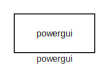
[diagram: root canvas - part 1/4, top center region]
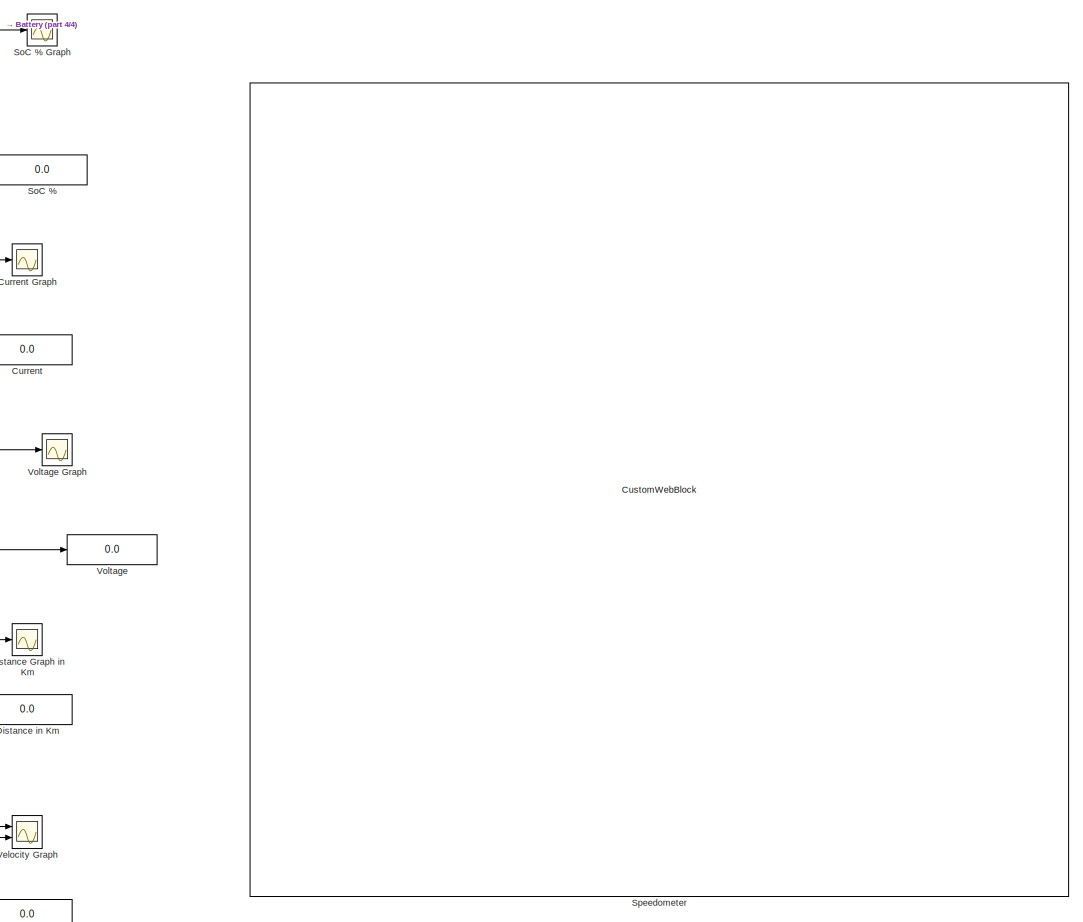
[diagram: root canvas - part 2/4, middle right region]
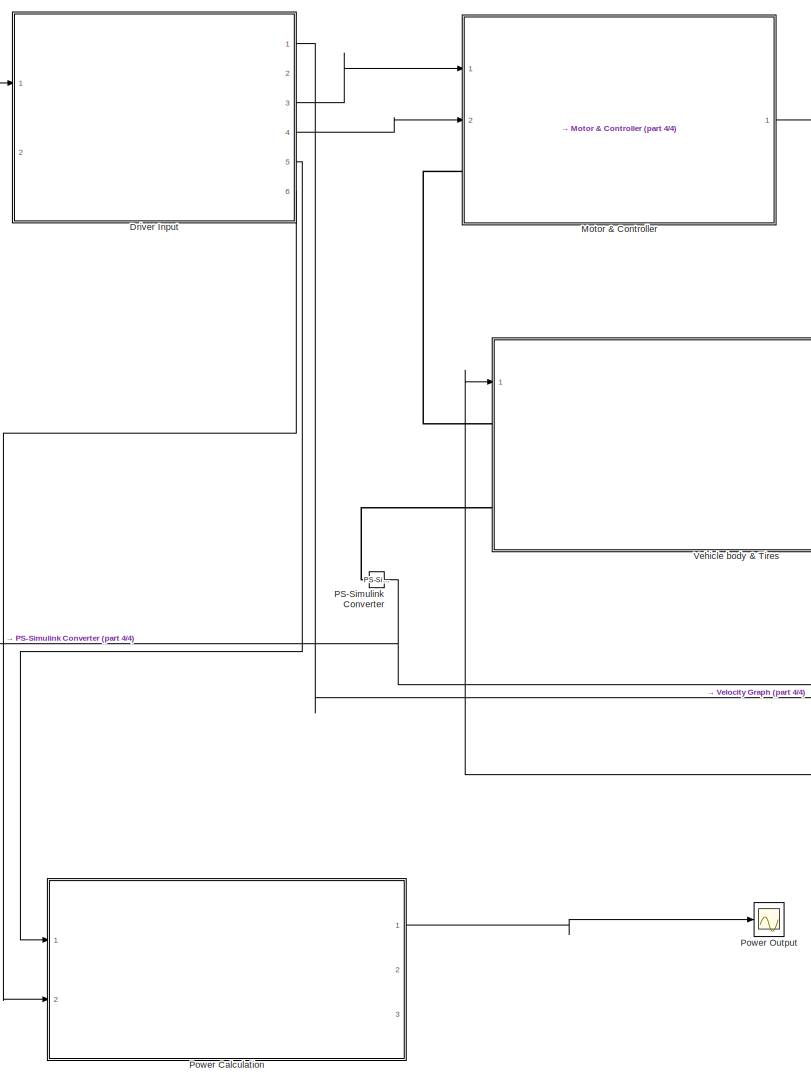
[diagram: root canvas - part 3/4, bottom left region]
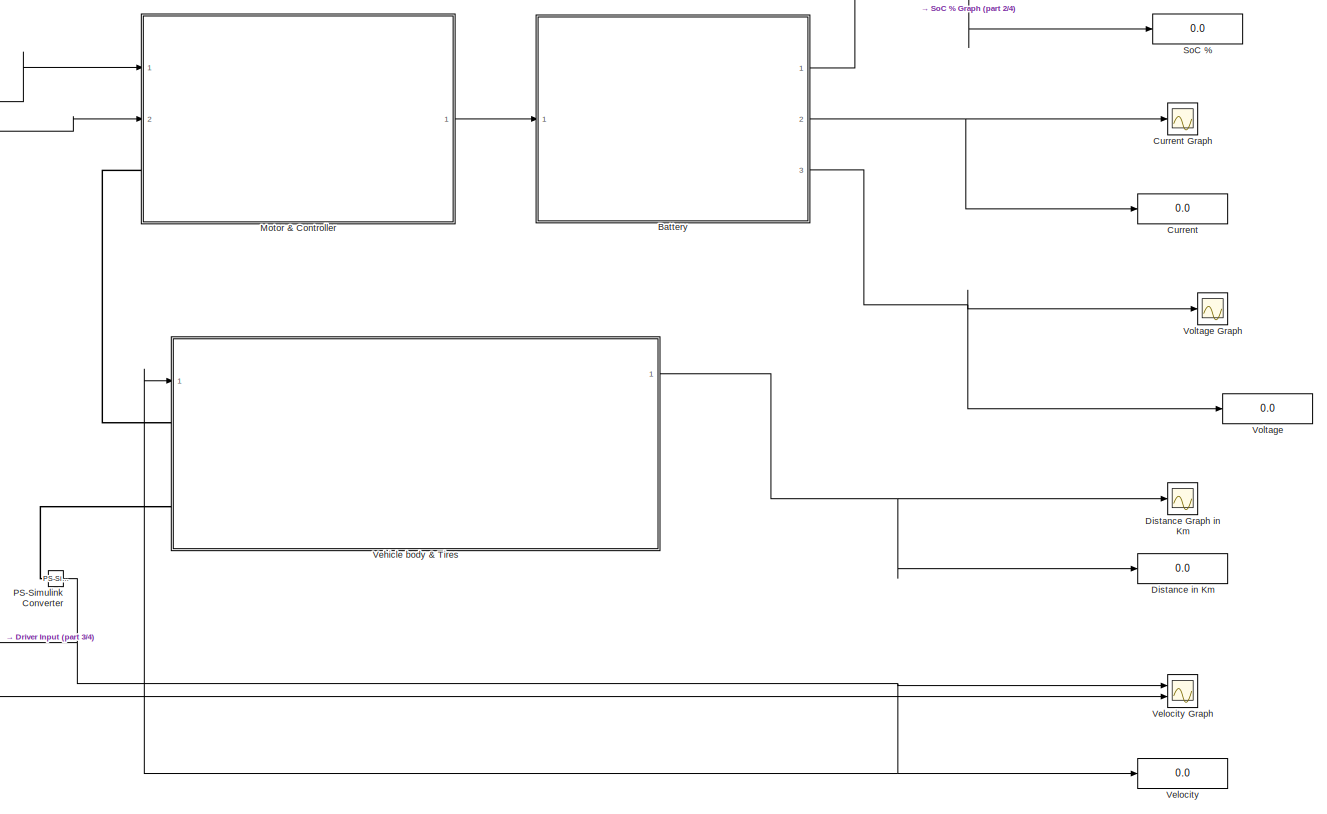
[diagram: root canvas - part 4/4, central region]
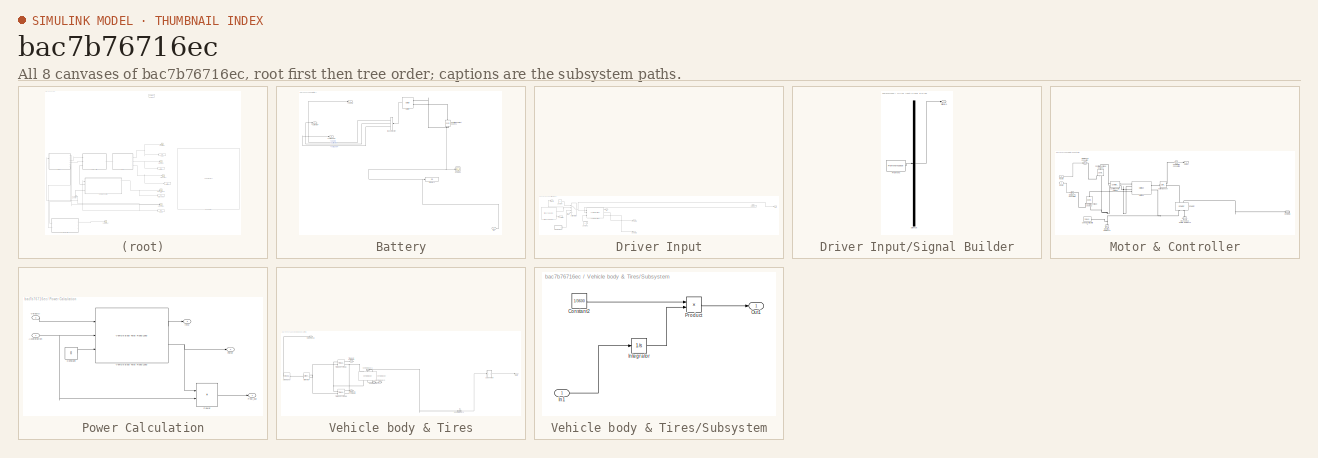
[diagram: thumbnail index - all 8 canvases of the model, root first then tree order]
MODEL slx_bac7b76716ec
KIND model
CONFIG AbsTol = auto
CONFIG EnableMultiTasking = off
CONFIG FixedStep = auto
CONFIG MaxStep = auto
CONFIG MinStep = auto
CONFIG RelTol = 1e-3
CONFIG SampleTimeConstraint = Unconstrained
CONFIG SolverName = VariableStepAuto
CONFIG StartTime = 0.0
CONFIG StopTime = 1068
BLOCK [CustomWebBlock]  Speedometer
  Configuration = {"components":[{"name":"CircularScaleComponent","settings":{"bounds":{"max":150,"min":0,"tickInterval":"auto"},"direction":"cw","flipLimits":0,"innerRadius":0.4366038148247103,"internalTickHeightScaleFactor":1,"labelColor":[250,245,200],"labelFont":{"font":"Arial","fontSize":12},"labelRadius":0.36,"labelTransparency":1,"minorTickHeightScaleFactor":0.2,"needleImage":{"size":[200,50],"src":"data:ima...<+21500ch>
  ShowInitialText = on
BLOCK [SubSystem] Battery
  Ports = [1, 3]
  RequestExecContextInheritance = off
BLOCK [Outport] Battery/<Current (A)>
  Port = 2
BLOCK [Outport] Battery/<SOC (%)>
BLOCK [Outport] Battery/<Voltage (V)>
  Port = 3
BLOCK [Reference] Battery/Battery  REF=spsBatteryLib/Battery
  Ports = [0, 1, 0, 0, 0, 2]
  SourceBlock = spsBatteryLib/Battery
  SourceProductBaseCode = PS
  SourceType = Battery
BLOCK [BusSelector] Battery/Bus Selector
  OutputSignals = SOC (%),Current (A),Voltage (V)
  Ports = [1, 3]
BLOCK [Reference] Battery/Controlled Current Source1  REF=spsControlledCurrentSourceLib/Controlled Current Source
  NameLocation = right
  Ports = [1, 0, 0, 0, 0, 1, 1]
  SourceBlock = spsControlledCurrentSourceLib/Controlled Current Source
  SourceProductBaseCode = PS
  SourceType = Controlled Current Source
BLOCK [Display] Battery/Display1
  Decimation = 1
  Ports = [1]
BLOCK [Inport] Battery/In1
BLOCK [Scope] Battery/Scope1
  Floating = off
  NumInputPorts = 1
  Ports = [1]
  ScopeSpecificationString = Simulink.scopes.TimeScopeBlockCfg('CurrentConfiguration', extmgr.ConfigurationSet(extmgr.Configuration('Core','General UI',true),extmgr.Configuration('Core','Source UI',true),extmgr.Configuration('Sources','WiredSimulink',true,'DataLoggingVariableName','ScopeData1'),extmgr.Configuration('Visuals','Time Domain',true,'SerializedDisplays',{struct('MinYLimReal','-308.28323','MaxYLimReal','426.32347','...<+1395ch>
BLOCK [Display] Current
  Decimation = 1
  Ports = [1]
BLOCK [Scope] Current Graph
  Floating = off
  NumInputPorts = 1
  Ports = [1]
  ScopeSpecificationString = Simulink.scopes.TimeScopeBlockCfg('CurrentConfiguration', extmgr.ConfigurationSet(extmgr.Configuration('Core','General UI',true),extmgr.Configuration('Core','Source UI',true),extmgr.Configuration('Sources','WiredSimulink',true,'DataLoggingVariableName','ScopeData3'),extmgr.Configuration('Visuals','Time Domain',true,'SerializedDisplays',{struct('MinYLimReal','-308.28322','MaxYLimReal','426.32347','...<+1392ch>
BLOCK [Scope] Distance Graph in Km
  Floating = off
  NumInputPorts = 1
  Ports = [1]
  ScopeSpecificationString = Simulink.scopes.TimeScopeBlockCfg('CurrentConfiguration', extmgr.ConfigurationSet(extmgr.Configuration('Core','General UI',true),extmgr.Configuration('Core','Source UI',true),extmgr.Configuration('Sources','WiredSimulink',true,'DataLoggingVariableName','ScopeData5'),extmgr.Configuration('Visuals','Time Domain',true,'SerializedDisplays',{struct('MinYLimReal','-1.36106','MaxYLimReal','12.24953','YLa...<+1383ch>
BLOCK [Display] Distance in Km
  Decimation = 1
  Ports = [1]
BLOCK [SubSystem] Driver Input
  Ports = [2, 6]
  RequestExecContextInheritance = off
BLOCK [Outport] Driver Input/AccelCmd
  Port = 3
BLOCK [Outport] Driver Input/Accleration
  Port = 5
BLOCK [Constant] Driver Input/Constant
  SampleTime = -1
  VectorParams1D = off
BLOCK [Constant] Driver Input/Constant1
  SampleTime = -1
  Value = 0
  VectorParams1D = off
BLOCK [Outport] Driver Input/DecelCmd
  Port = 4
BLOCK [Reference] Driver Input/Drive Cycle Source  REF=autolibshared/Drive Cycle Source
  AttributesFormatString = %<cycleVar> (%<tfinal>)
  Ports = [0, 2]
  SourceBlock = autolibshared/Drive Cycle Source
  SourceProductBaseCode = PW,DR,MT,UV,VE
  SourceType = Drive Cycle Source
BLOCK [Inport] Driver Input/In2
  Port = 2
BLOCK [Outport] Driver Input/Info
  Port = 2
BLOCK [Reference] Driver Input/Longitudinal Driver  REF=autolibshared/Longitudinal Driver
  Ports = [3, 3]
  SourceBlock = autolibshared/Longitudinal Driver
  SourceProductBaseCode = PW,DR,MT,UV,VE
  SourceType = Longitudinal Driver
BLOCK [MultiPortSwitch] Driver Input/Multiport Switch
  InputSameDT = off
  Ports = [4, 1]
  SaturateOnIntegerOverflow = off
BLOCK [Outport] Driver Input/Out1
BLOCK [SubSystem] Driver Input/Signal Builder
  ClipboardFcn = sigbuilder_block('clipboard');
  CloseFcn = sigbuilder_block('close');
  ContinueFcn = sigbuilder_block('continue');
  CopyFcn = sigbuilder_block('copy');
  DeleteFcn = sigbuilder_block('delete');
  LoadFcn = sigbuilder_block('load');
  MaskHideContents = on
  ModelCloseFcn = sigbuilder_block('modelClose');
  NameChangeFcn = sigbuilder_block('namechange');
  OpenFcn = sigbuilder_block('open',[451.2 94.8 550.8 400.2 ]);
  PauseFcn = sigbuilder_block('pause');
  Ports = [0, 1]
  PreSaveFcn = sigbuilder_block('preSave');
  RequestExecContextInheritance = off
  StartFcn = sigbuilder_block('start');
  StopFcn = sigbuilder_block('stop');
  Tag = STV Subsys
BLOCK [Demux] Driver Input/Signal Builder/Demux
  DisplayOption = none
  Outputs = 1
  Ports = [1, 1]
  Tag = STV Demux
BLOCK [FromWorkspace] Driver Input/Signal Builder/FromWs
  Tag = STV FromWs
  VariableName = tuvar
BLOCK [Outport] Driver Input/Signal Builder/Signal 1
  Tag = STV Outport
BLOCK [Inport] Driver Input/VelFdbk
BLOCK [Outport] Driver Input/Velocity
  Port = 6
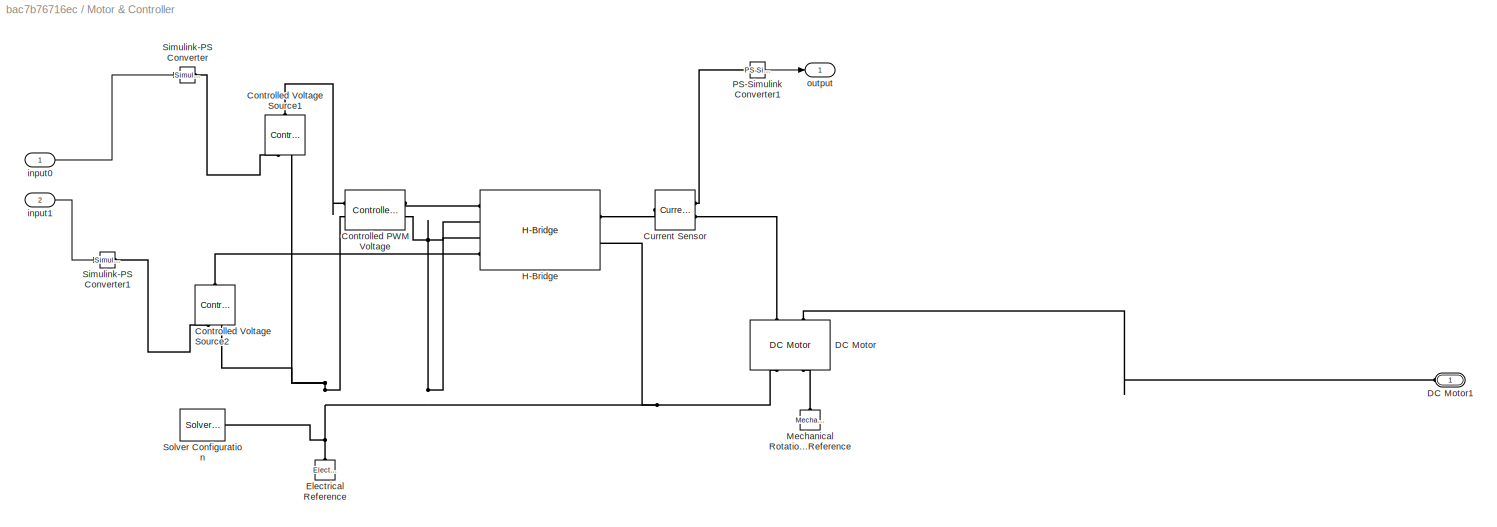
BLOCK [SubSystem] Motor & Controller
  Ports = [2, 1, 0, 0, 0, 1]
  RequestExecContextInheritance = off
BLOCK [Reference] Motor & Controller/Controlled PWM Voltage  REF=ee_lib/Integrated Circuits/Controlled PWM
Voltage
  Ports = [0, 0, 0, 0, 0, 2, 2]
  SourceBlock = ee_lib/Integrated Circuits/Controlled PWM\nVoltage
  SourceProductBaseCode = PS
  SourceType = Controlled PWM\nVoltage
BLOCK [Reference] Motor & Controller/Controlled Voltage Source1  REF=fl_lib/Electrical/Electrical Sources/Controlled Voltage
Source
  NameLocation = right
  Ports = [0, 0, 0, 0, 0, 1, 2]
  SourceBlock = fl_lib/Electrical/Electrical Sources/Controlled Voltage\nSource
  SourceProductBaseCode = SS
  SourceType = Controlled Voltage\nSource
BLOCK [Reference] Motor & Controller/Controlled Voltage Source2  REF=fl_lib/Electrical/Electrical Sources/Controlled Voltage
Source
  NameLocation = right
  Ports = [0, 0, 0, 0, 0, 1, 2]
  SourceBlock = fl_lib/Electrical/Electrical Sources/Controlled Voltage\nSource
  SourceProductBaseCode = SS
  SourceType = Controlled Voltage\nSource
BLOCK [Reference] Motor & Controller/Current Sensor  REF=fl_lib/Electrical/Electrical Sensors/Current Sensor
  Ports = [0, 0, 0, 0, 0, 1, 2]
  SourceBlock = fl_lib/Electrical/Electrical Sensors/Current Sensor
  SourceProductBaseCode = SS
  SourceType = Current Sensor
BLOCK [Reference] Motor & Controller/DC Motor  REF=ee_lib/Electromechanical/Brushed Motors/DC Motor
  NameLocation = right
  Ports = [0, 0, 0, 0, 0, 2, 2]
  SourceBlock = ee_lib/Electromechanical/Brushed Motors/DC Motor
  SourceProductBaseCode = PS
  SourceType = DC Motor
BLOCK [PMIOPort] Motor & Controller/DC Motor1
  Side = Left
BLOCK [Reference] Motor & Controller/Electrical Reference  REF=fl_lib/Electrical/Electrical Elements/Electrical Reference
  NameLocation = right
  Ports = [0, 0, 0, 0, 0, 1]
  SourceBlock = fl_lib/Electrical/Electrical Elements/Electrical Reference
  SourceProductBaseCode = SS
  SourceType = Electrical Reference
BLOCK [Reference] Motor & Controller/H-Bridge  REF=ee_lib/Semiconductors &
Converters/Converters/H-Bridge
  Ports = [0, 0, 0, 0, 0, 4, 2]
  SourceBlock = ee_lib/Semiconductors &\nConverters/Converters/H-Bridge
  SourceProductBaseCode = PS
  SourceType = H-Bridge
BLOCK [Reference] Motor & Controller/Mechanical Rotational Reference  REF=fl_lib/Mechanical/Rotational Elements/Mechanical
Rotational Reference
  NameLocation = right
  Ports = [0, 0, 0, 0, 0, 1]
  SourceBlock = fl_lib/Mechanical/Rotational Elements/Mechanical\nRotational Reference
  SourceProductBaseCode = SS
  SourceType = Mechanical\nRotational Reference
BLOCK [Reference] Motor & Controller/PS-Simulink Converter1  REF=nesl_utility/PS-Simulink
Converter
  Ports = [0, 1, 0, 0, 0, 1]
  SourceBlock = nesl_utility/PS-Simulink\nConverter
  SourceProductBaseCode = PW,SS
  SourceType = PS-Simulink\nConverter
BLOCK [Reference] Motor & Controller/Simulink-PS Converter  REF=nesl_utility/Simulink-PS
Converter
  Ports = [1, 0, 0, 0, 0, 0, 1]
  SourceBlock = nesl_utility/Simulink-PS\nConverter
  SourceProductBaseCode = PW,SS
  SourceType = Simulink-PS\nConverter
BLOCK [Reference] Motor & Controller/Simulink-PS Converter1  REF=nesl_utility/Simulink-PS
Converter
  Ports = [1, 0, 0, 0, 0, 0, 1]
  SourceBlock = nesl_utility/Simulink-PS\nConverter
  SourceProductBaseCode = PW,SS
  SourceType = Simulink-PS\nConverter
BLOCK [Reference] Motor & Controller/Solver Configuration  REF=nesl_utility/Solver
Configuration
  Ports = [0, 0, 0, 0, 0, 0, 1]
  SourceBlock = nesl_utility/Solver\nConfiguration
  SourceProductBaseCode = PW,SS
  SourceType = Solver\nConfiguration
BLOCK [Inport] Motor & Controller/input0
BLOCK [Inport] Motor & Controller/input1
  Port = 2
BLOCK [Outport] Motor & Controller/output
BLOCK [Reference] PS-Simulink Converter  REF=nesl_utility/PS-Simulink
Converter
  NameLocation = top
  Ports = [0, 1, 0, 0, 0, 1]
  SourceBlock = nesl_utility/PS-Simulink\nConverter
  SourceProductBaseCode = PW,SS
  SourceType = PS-Simulink\nConverter
BLOCK [SubSystem] Power Calculation
  Ports = [2, 3]
  RequestExecContextInheritance = off
BLOCK [Inport] Power Calculation/Acceleration
BLOCK [Constant] Power Calculation/Constant
  Value = 0
BLOCK [Outport] Power Calculation/Force
  Port = 2
BLOCK [Outport] Power Calculation/Pow_out
BLOCK [Product] Power Calculation/Power
  Ports = [2, 1]
BLOCK [Reference] Power Calculation/Vehicle Body Total Road Load  REF=autolibshared/Vehicle Body Total Road Load
  Ports = [3, 2]
  SourceBlock = autolibshared/Vehicle Body Total Road Load
  SourceProductBaseCode = PW,DR,MT,UV,VE
  SourceType = Vehicle Body Total Road Load
BLOCK [Inport] Power Calculation/Velocity
  Port = 2
BLOCK [Outport] Power Calculation/info
  Port = 3
BLOCK [Scope] Power Output
  Floating = off
  NumInputPorts = 1
  Ports = [1]
  ScopeSpecificationString = Simulink.scopes.TimeScopeBlockCfg('CurrentConfiguration', extmgr.ConfigurationSet(extmgr.Configuration('Core','General UI',true),extmgr.Configuration('Core','Source UI',true),extmgr.Configuration('Sources','WiredSimulink',true,'DataLoggingVariableName','ScopeData1'),extmgr.Configuration('Visuals','Time Domain',true,'SerializedDisplays',{struct('MinYLimReal','-18895.3286','MaxYLimReal','166466.9152...<+1463ch>
BLOCK [Display] SoC %
  Decimation = 1
  Ports = [1]
BLOCK [Scope] SoC % Graph
  Floating = off
  NumInputPorts = 1
  Ports = [1]
  ScopeSpecificationString = Simulink.scopes.TimeScopeBlockCfg('CurrentConfiguration', extmgr.ConfigurationSet(extmgr.Configuration('Core','General UI',true),extmgr.Configuration('Core','Source UI',true),extmgr.Configuration('Sources','WiredSimulink',true,'DataLoggingVariableName','ScopeData2'),extmgr.Configuration('Visuals','Time Domain',true,'SerializedDisplays',{struct('MinYLimReal','84.17971','MaxYLimReal','101.75781','YL...<+1416ch>
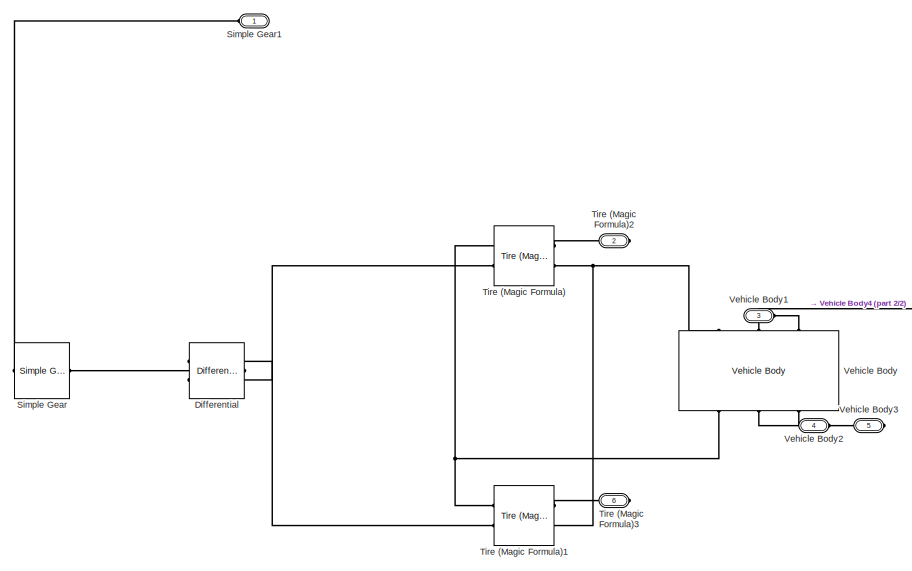
[diagram: Vehicle body & Tires - part 1/2, left side, full height]
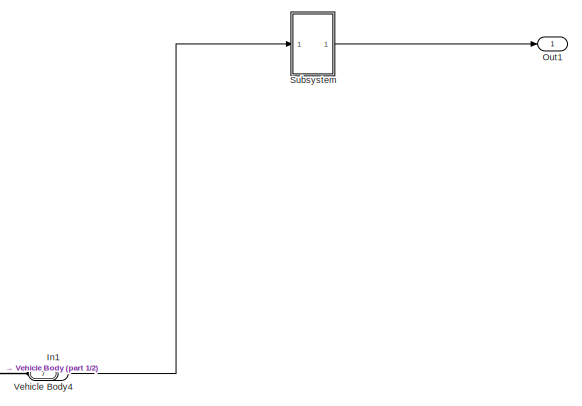
[diagram: Vehicle body & Tires - part 2/2, bottom right region]
BLOCK [SubSystem] Vehicle body & Tires
  Ports = [1, 1, 0, 0, 0, 3, 4]
  RequestExecContextInheritance = off
BLOCK [Reference] Vehicle body & Tires/Differential  REF=sdl_lib/Gears/Differential
  NameLocation = top
  Ports = [0, 0, 0, 0, 0, 1, 2]
  SourceBlock = sdl_lib/Gears/Differential
  SourceProductBaseCode = LD
  SourceType = Differential
BLOCK [Inport] Vehicle body & Tires/In1
BLOCK [Outport] Vehicle body & Tires/Out1
BLOCK [Reference] Vehicle body & Tires/Simple Gear  REF=sdl_lib/Gears/Simple Gear
  Ports = [0, 0, 0, 0, 0, 1, 1]
  SourceBlock = sdl_lib/Gears/Simple Gear
  SourceProductBaseCode = LD
  SourceType = Simple Gear
BLOCK [PMIOPort] Vehicle body & Tires/Simple Gear1
  Side = Left
BLOCK [SubSystem] Vehicle body & Tires/Subsystem
  Ports = [1, 1]
  RequestExecContextInheritance = off
BLOCK [Constant] Vehicle body & Tires/Subsystem/Constant2
  Value = 1/3600
BLOCK [Inport] Vehicle body & Tires/Subsystem/In1
BLOCK [Integrator] Vehicle body & Tires/Subsystem/Integrator
  Ports = [1, 1]
BLOCK [Outport] Vehicle body & Tires/Subsystem/Out1
BLOCK [Product] Vehicle body & Tires/Subsystem/Product
  Ports = [2, 1]
BLOCK [Reference] Vehicle body & Tires/Tire (Magic Formula)  REF=sdl_lib/Tires & Vehicles/Tire (Magic Formula)
  Ports = [0, 0, 0, 0, 0, 2, 2]
  SourceBlock = sdl_lib/Tires & Vehicles/Tire (Magic Formula)
  SourceProductBaseCode = LD
  SourceType = Tire (Magic Formula)
BLOCK [Reference] Vehicle body & Tires/Tire (Magic Formula)1  REF=sdl_lib/Tires & Vehicles/Tire (Magic Formula)
  Ports = [0, 0, 0, 0, 0, 2, 2]
  SourceBlock = sdl_lib/Tires & Vehicles/Tire (Magic Formula)
  SourceProductBaseCode = LD
  SourceType = Tire (Magic Formula)
BLOCK [PMIOPort] Vehicle body & Tires/Tire (Magic Formula)2
  Port = 2
  Side = Right
BLOCK [PMIOPort] Vehicle body & Tires/Tire (Magic Formula)3
  Port = 6
  Side = Right
BLOCK [Reference] Vehicle body & Tires/Vehicle Body  REF=sdl_lib/Tires & Vehicles/Vehicle Body
  NameLocation = right
  Ports = [0, 0, 0, 0, 0, 3, 3]
  SourceBlock = sdl_lib/Tires & Vehicles/Vehicle Body
  SourceProductBaseCode = LD
  SourceType = Vehicle Body
BLOCK [PMIOPort] Vehicle body & Tires/Vehicle Body1
  Port = 3
  Side = Left
BLOCK [PMIOPort] Vehicle body & Tires/Vehicle Body2
  Port = 4
  Side = Right
BLOCK [PMIOPort] Vehicle body & Tires/Vehicle Body3
  Port = 5
  Side = Right
BLOCK [PMIOPort] Vehicle body & Tires/Vehicle Body4
  Port = 7
  Side = Left
BLOCK [Display] Velocity
  Decimation = 1
  Ports = [1]
BLOCK [Scope] Velocity Graph
  Floating = off
  NumInputPorts = 2
  Ports = [2]
  ScopeSpecificationString = Simulink.scopes.TimeScopeBlockCfg('CurrentConfiguration', extmgr.ConfigurationSet(extmgr.Configuration('Core','General UI',true),extmgr.Configuration('Core','Source UI',true),extmgr.Configuration('Sources','WiredSimulink',true),extmgr.Configuration('Visuals','Time Domain',true,'SerializedDisplays',{struct('MinYLimReal','-16.475','MaxYLimReal','148.275','YLabelReal','','MinYLimMag','0.00000','MaxYL...<+1356ch>
BLOCK [Display] Voltage
  Decimation = 1
  Ports = [1]
BLOCK [Scope] Voltage Graph
  Floating = off
  NumInputPorts = 1
  Ports = [1]
  ScopeSpecificationString = Simulink.scopes.TimeScopeBlockCfg('CurrentConfiguration', extmgr.ConfigurationSet(extmgr.Configuration('Core','General UI',true),extmgr.Configuration('Core','Source UI',true),extmgr.Configuration('Sources','WiredSimulink',true,'DataLoggingVariableName','ScopeData4'),extmgr.Configuration('Visuals','Time Domain',true,'SerializedDisplays',{struct('MinYLimReal','45.79821','MaxYLimReal','55.52794','YLa...<+1384ch>
BLOCK [Reference] powergui  REF=spspowerguiLib/powergui
  Ports = []
  Priority = 1
  SourceBlock = spspowerguiLib/powergui
  SourceProductBaseCode = PS
  SourceType = PSB option menu block
LINE Battery/Battery:1 -> Battery/Bus Selector:1
LINE Battery/Bus Selector:1 -> Battery/<SOC (%)>:1
LINE Battery/Bus Selector:2 -> Battery/<Current (A)>:1
LINE Battery/Bus Selector:3 -> Battery/<Voltage (V)>:1
NET Battery/In1:1 -> Battery/Controlled Current Source1:1, Battery/Display1:1, Battery/Scope1:1
NET Battery:1 -> SoC % Graph:1, SoC %:1
NET Battery:2 -> Current Graph:1, Current:1
NET Battery:3 -> Voltage Graph:1, Voltage:1
LINE Driver Input/Constant1:1 -> Driver Input/Longitudinal Driver:3
LINE Driver Input/Constant:1 -> Driver Input/Multiport Switch:1
NET Driver Input/Drive Cycle Source:1 -> Driver Input/Multiport Switch:2, Driver Input/Velocity:1
LINE Driver Input/Drive Cycle Source:2 -> Driver Input/Accleration:1
LINE Driver Input/In2:1 -> Driver Input/Multiport Switch:4
LINE Driver Input/Longitudinal Driver:1 -> Driver Input/Info:1
LINE Driver Input/Longitudinal Driver:2 -> Driver Input/AccelCmd:1
LINE Driver Input/Longitudinal Driver:3 -> Driver Input/DecelCmd:1
NET Driver Input/Multiport Switch:1 -> Driver Input/Longitudinal Driver:1, Driver Input/Out1:1
LINE Driver Input/Signal Builder:1 -> Driver Input/Multiport Switch:3
LINE Driver Input/VelFdbk:1 -> Driver Input/Longitudinal Driver:2
LINE Driver Input:1 -> Velocity Graph:2
LINE Driver Input:3 -> Motor & Controller:1
LINE Driver Input:4 -> Motor & Controller:2
LINE Driver Input:5 -> Power Calculation:1
LINE Driver Input:6 -> Power Calculation:2
LINE Motor & Controller/PS-Simulink Converter1:1 -> Motor & Controller/output:1
LINE Motor & Controller/input0:1 -> Motor & Controller/Simulink-PS Converter:1
LINE Motor & Controller/input1:1 -> Motor & Controller/Simulink-PS Converter1:1
LINE Motor & Controller:1 -> Battery:1
NET PS-Simulink Converter:1 -> Driver Input:1, Vehicle body & Tires:1, Velocity Graph:1, Velocity:1
NET Power Calculation/Acceleration:1 -> Power Calculation/Power:2, Power Calculation/Vehicle Body Total Road Load:2
LINE Power Calculation/Constant:1 -> Power Calculation/Vehicle Body Total Road Load:3
LINE Power Calculation/Power:1 -> Power Calculation/Pow_out:1
LINE Power Calculation/Vehicle Body Total Road Load:1 -> Power Calculation/info:1
NET Power Calculation/Vehicle Body Total Road Load:2 -> Power Calculation/Force:1, Power Calculation/Power:1
LINE Power Calculation/Velocity:1 -> Power Calculation/Vehicle Body Total Road Load:1
LINE Power Calculation:1 -> Power Output:1
LINE Vehicle body & Tires/In1:1 -> Vehicle body & Tires/Subsystem:1
LINE Vehicle body & Tires/Subsystem/Constant2:1 -> Vehicle body & Tires/Subsystem/Product:1
LINE Vehicle body & Tires/Subsystem/In1:1 -> Vehicle body & Tires/Subsystem/Integrator:1
LINE Vehicle body & Tires/Subsystem/Integrator:1 -> Vehicle body & Tires/Subsystem/Product:2
LINE Vehicle body & Tires/Subsystem/Product:1 -> Vehicle body & Tires/Subsystem/Out1:1
LINE Vehicle body & Tires/Subsystem:1 -> Vehicle body & Tires/Out1:1
NET Vehicle body & Tires:1 -> Distance Graph in Km:1, Distance in Km:1
PLINE Battery/Battery:LConn1 -- Battery/Controlled Current Source1:LConn1
PLINE Battery/Battery:LConn2 -- Battery/Controlled Current Source1:RConn1
PLINE Motor & Controller/Controlled PWM Voltage:LConn1 -- Motor & Controller/Controlled Voltage Source1:LConn1
PNET net1: Motor & Controller/Controlled PWM Voltage:LConn2 -- Motor & Controller/Controlled PWM Voltage:RConn2 -- Motor & Controller/Controlled Voltage Source1:RConn2 -- Motor & Controller/Controlled Voltage Source2:RConn2 -- Motor & Controller/DC Motor:RConn1 -- Motor & Controller/Electrical Reference:LConn1 -- Motor & Controller/H-Bridge:LConn2 -- Motor & Controller/H-Bridge:LConn3 -- Motor & Controller/H-Bridge:RConn2 -- Motor & Controller/Solver Configuration:RConn1
PLINE Motor & Controller/Controlled PWM Voltage:RConn1 -- Motor & Controller/H-Bridge:LConn1
PLINE Motor & Controller/Controlled Voltage Source1:RConn1 -- Motor & Controller/Simulink-PS Converter:RConn1
PLINE Motor & Controller/Controlled Voltage Source2:LConn1 -- Motor & Controller/H-Bridge:LConn4
PLINE Motor & Controller/Controlled Voltage Source2:RConn1 -- Motor & Controller/Simulink-PS Converter1:RConn1
PLINE Motor & Controller/Current Sensor:LConn1 -- Motor & Controller/H-Bridge:RConn1
PLINE Motor & Controller/Current Sensor:RConn1 -- Motor & Controller/PS-Simulink Converter1:LConn1
PLINE Motor & Controller/Current Sensor:RConn2 -- Motor & Controller/DC Motor:LConn1
PLINE Motor & Controller/DC Motor1:RConn1 -- Motor & Controller/DC Motor:LConn2
PLINE Motor & Controller/DC Motor:RConn2 -- Motor & Controller/Mechanical Rotational Reference:LConn1
PLINE Motor & Controller:LConn1 -- Vehicle body & Tires:LConn1
PLINE PS-Simulink Converter:LConn1 -- Vehicle body & Tires:LConn3
PLINE Vehicle body & Tires/Differential:LConn1 -- Vehicle body & Tires/Simple Gear:RConn1
PLINE Vehicle body & Tires/Differential:RConn1 -- Vehicle body & Tires/Tire (Magic Formula)1:LConn2
PLINE Vehicle body & Tires/Differential:RConn2 -- Vehicle body & Tires/Tire (Magic Formula):LConn2
PLINE Vehicle body & Tires/Simple Gear1:RConn1 -- Vehicle body & Tires/Simple Gear:LConn1
PNET net2: Vehicle body & Tires/Tire (Magic Formula)1:LConn1 -- Vehicle body & Tires/Tire (Magic Formula):LConn1 -- Vehicle body & Tires/Vehicle Body:RConn1
PLINE Vehicle body & Tires/Tire (Magic Formula)1:RConn1 -- Vehicle body & Tires/Tire (Magic Formula)3:RConn1
PNET net3: Vehicle body & Tires/Tire (Magic Formula)1:RConn2 -- Vehicle body & Tires/Tire (Magic Formula):RConn2 -- Vehicle body & Tires/Vehicle Body:LConn1
PLINE Vehicle body & Tires/Tire (Magic Formula)2:RConn1 -- Vehicle body & Tires/Tire (Magic Formula):RConn1
PLINE Vehicle body & Tires/Vehicle Body1:RConn1 -- Vehicle body & Tires/Vehicle Body:LConn3
PLINE Vehicle body & Tires/Vehicle Body2:RConn1 -- Vehicle body & Tires/Vehicle Body:RConn2
PLINE Vehicle body & Tires/Vehicle Body3:RConn1 -- Vehicle body & Tires/Vehicle Body:RConn3
PLINE Vehicle body & Tires/Vehicle Body4:RConn1 -- Vehicle body & Tires/Vehicle Body:LConn2
note: NET lines group one-source signal fan-out (src -> all destinations, sorted); 1:1 wires keep LINE; PNET lines group multi-terminal physical nets as a canonical sorted terminal list (undirected conserving connections); 2-terminal nets keep the pairwise PLINE form
